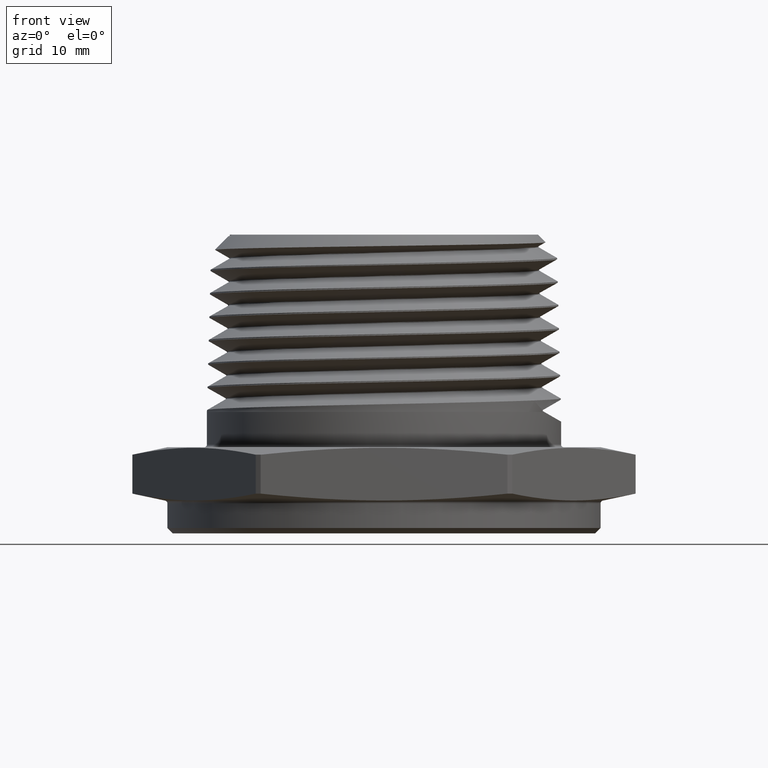
[diagram: clean part render]
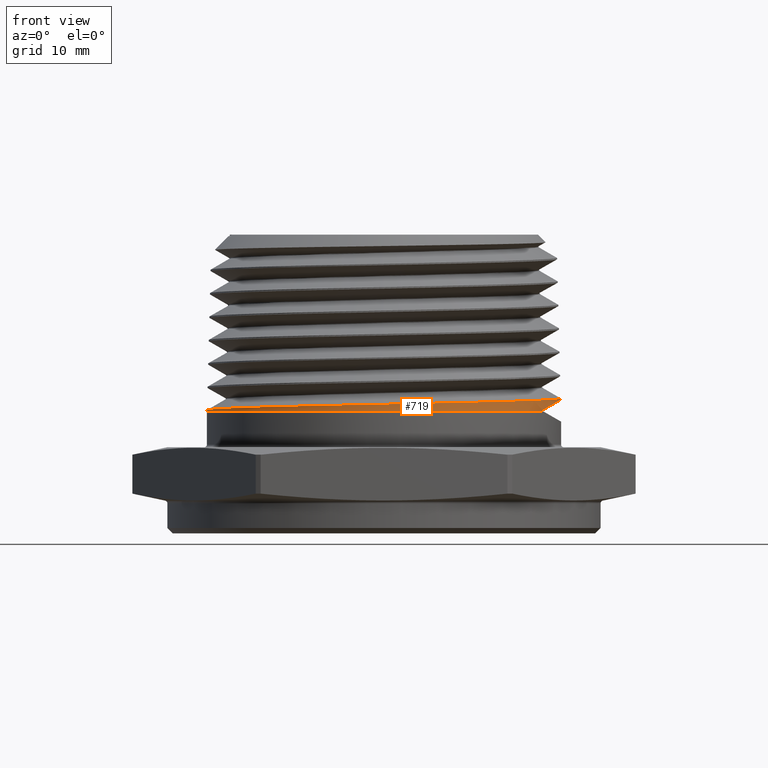
[diagram: same view with one face highlighted and labeled with its STEP entity id]
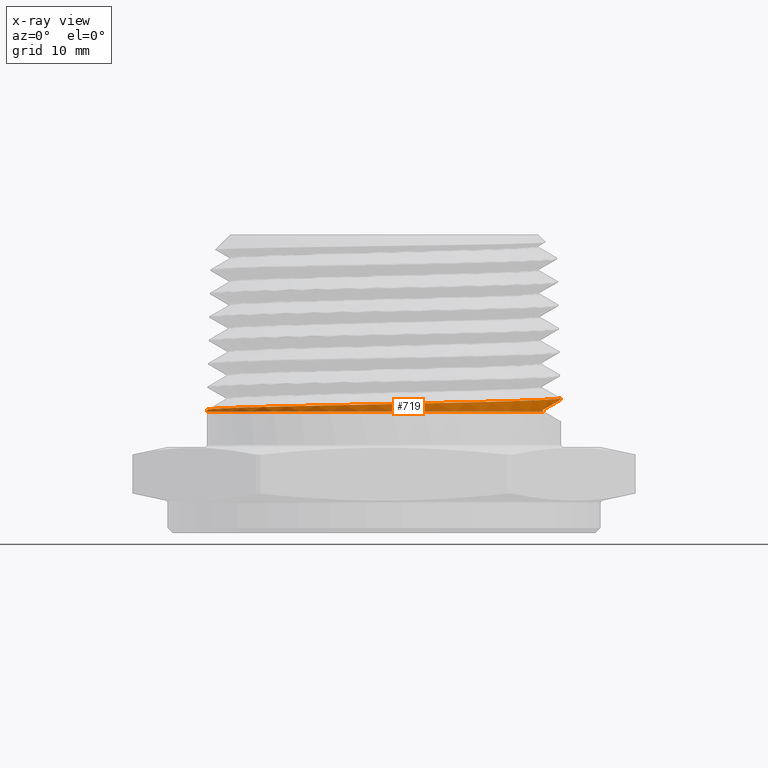
[diagram: x-ray of the same camera — body ghosted, the highlighted face saturated]
A machine part, front view. The second image highlights one B-rep face of the part: STEP entity #719.
The next image is the same camera in x-ray: the body ghosted, the highlighted face saturated — about 0% of this face is hidden behind the body in this view.
In plain terms, the highlighted conical surface has half-angle 1.47 deg.
Its self-contained STEP definition (entity closure, byte-faithful):
#719 = ADVANCED_FACE ( 'NONE', ( #4625 ), #5958, .T. ) ;
#788 = EDGE_CURVE ( 'NONE', #2384, #2395, #6013, .T. ) ;
#848 = EDGE_CURVE ( 'NONE', #2395, #1600, #5907, .T. ) ;
#849 = EDGE_CURVE ( 'NONE', #2384, #2394, #5908, .T. ) ;
#851 = EDGE_CURVE ( 'NONE', #1653, #2398, #6071, .T. ) ;
#852 = EDGE_CURVE ( 'NONE', #2394, #1653, #6077, .T. ) ;
#853 = EDGE_CURVE ( 'NONE', #1599, #2398, #5909, .T. ) ;
#864 = EDGE_CURVE ( 'NONE', #1600, #1599, #5916, .T. ) ;
#957 = AXIS2_PLACEMENT_3D ( 'NONE', #1794, #1790, #1792 ) ;
#1413 = CARTESIAN_POINT ( 'NONE',  ( -0.6580000000000000300, 0.0000000000000000000, 0.3314379562613716800 ) ) ;
#1414 = CARTESIAN_POINT ( 'NONE',  ( 0.5898525199133291000, -0.2914352094944749900, 0.3345035787355981100 ) ) ;
#1415 = CARTESIAN_POINT ( 'NONE',  ( 0.5898525199133287700, -0.2912411631053252700, 0.3378522102968977100 ) ) ;
#1461 = CARTESIAN_POINT ( 'NONE',  ( 0.6567134355445304300, -9.860924235501280200E-015, 0.3815730164504494400 ) ) ;
#1471 = CARTESIAN_POINT ( 'NONE',  ( -0.6578292180391130900, 1.210439517498192600E-016, 0.3380930164504473100 ) ) ;
#1472 = CARTESIAN_POINT ( 'NONE',  ( 0.6568428721711039300, 9.652806251365154000E-016, 0.3765291082060324100 ) ) ;
#1475 = CARTESIAN_POINT ( 'NONE',  ( 0.5951623337955140900, -0.2806168142344235800, 0.3314379562613716800 ) ) ;
#1599 = VERTEX_POINT ( 'NONE', #1414 ) ;
#1600 = VERTEX_POINT ( 'NONE', #1415 ) ;
#1653 = VERTEX_POINT ( 'NONE', #1413 ) ;
#1790 = DIRECTION ( 'NONE',  ( -0.0000000000000000000, -0.0000000000000000000, -1.000000000000000000 ) ) ;
#1792 = DIRECTION ( 'NONE',  ( -1.000000000000000000, 0.0000000000000000000, 0.0000000000000000000 ) ) ;
#1794 = CARTESIAN_POINT ( 'NONE',  ( 0.0000000000000000000, 0.0000000000000000000, 0.2194869294921574800 ) ) ;
#2209 = CARTESIAN_POINT ( 'NONE',  ( 0.6567134355445304300, -9.860924235501280200E-015, 0.3815730164504494400 ) ) ;
#2259 = CARTESIAN_POINT ( 'NONE',  ( 0.6567369056506057200, -0.04339715730641004200, 0.3806584294076113000 ) ) ;
#2303 = AXIS2_PLACEMENT_3D ( 'NONE', #2467, #2468, #2469 ) ;
#2384 = VERTEX_POINT ( 'NONE', #1461 ) ;
#2394 = VERTEX_POINT ( 'NONE', #1471 ) ;
#2395 = VERTEX_POINT ( 'NONE', #1472 ) ;
#2398 = VERTEX_POINT ( 'NONE', #1475 ) ;
#2407 = CARTESIAN_POINT ( 'NONE',  ( 0.6568428721711039300, 9.652806251365154000E-016, 0.3765291082060324100 ) ) ;
#2408 = DIRECTION ( 'NONE',  ( -0.02565352539212765300, 0.0000000000000000000, -0.9996708941621514900 ) ) ;
#2409 = CARTESIAN_POINT ( 'NONE',  ( 0.6568428721711039300, -0.1013337133402427000, 0.3765291082060323000 ) ) ;
#2410 = CARTESIAN_POINT ( 'NONE',  ( 0.6341274557185087000, -0.2000891920787184500, 0.3634143564023718500 ) ) ;
#2411 = CARTESIAN_POINT ( 'NONE',  ( 0.5898525199133287700, -0.2912411631053252700, 0.3378522102968977100 ) ) ;
#2414 = CARTESIAN_POINT ( 'NONE',  ( 0.6524889236752985400, -0.08616527073906904400, 0.3797571019703457900 ) ) ;
#2415 = CARTESIAN_POINT ( 'NONE',  ( 0.6399936896933122700, -0.1491494512881604800, 0.3784039927050985600 ) ) ;
#2416 = CARTESIAN_POINT ( 'NONE',  ( 0.6348004925453525300, -0.1699631981320700000, 0.3779510165498167800 ) ) ;
#2417 = CARTESIAN_POINT ( 'NONE',  ( 0.6223145524833897400, -0.2112211429723215600, 0.3770427112903583800 ) ) ;
#2418 = CARTESIAN_POINT ( 'NONE',  ( 0.6149765384247373200, -0.2317530552344231600, 0.3765853477994813800 ) ) ;
#2419 = CARTESIAN_POINT ( 'NONE',  ( 0.5902232165858837300, -0.2915184465484796400, 0.3752222740235077200 ) ) ;
#2420 = CARTESIAN_POINT ( 'NONE',  ( 0.5700300173382353300, -0.3292808222137241200, 0.3743244407011581700 ) ) ;
#2421 = CARTESIAN_POINT ( 'NONE',  ( 0.5342787168073156500, -0.3828441991189949200, 0.3729676776663980500 ) ) ;
#2422 = CARTESIAN_POINT ( 'NONE',  ( 0.5214235291131775800, -0.4002077240866688300, 0.3725115816458150500 ) ) ;
#2423 = CARTESIAN_POINT ( 'NONE',  ( 0.4939002561554556900, -0.4337534759318648600, 0.3715974677031099200 ) ) ;
#2424 = CARTESIAN_POINT ( 'NONE',  ( 0.4794221395338140700, -0.4497095094615977100, 0.3711456366927846600 ) ) ;
#2425 = CARTESIAN_POINT ( 'NONE',  ( 0.4339106623185426400, -0.4952090304188362400, 0.3697898736688560200 ) ) ;
#2426 = CARTESIAN_POINT ( 'NONE',  ( 0.4008194911163391900, -0.5224061692586617900, 0.3688920263576103100 ) ) ;
#2427 = CARTESIAN_POINT ( 'NONE',  ( 0.3469782497905014000, -0.5584068959754980900, 0.3675277449132204900 ) ) ;
#2428 = CARTESIAN_POINT ( 'NONE',  ( 0.3282867826883585400, -0.5696077229070458700, 0.3670678222739587300 ) ) ;
#2429 = CARTESIAN_POINT ( 'NONE',  ( 0.2903039439713733800, -0.5898977684212540800, 0.3661608526586644900 ) ) ;
#2430 = CARTESIAN_POINT ( 'NONE',  ( 0.2709160397493077200, -0.5990576561335535500, 0.3657112613438754400 ) ) ;
#2431 = CARTESIAN_POINT ( 'NONE',  ( 0.2313612273028892200, -0.6154412821016056500, 0.3648095030311995200 ) ) ;
#2432 = CARTESIAN_POINT ( 'NONE',  ( 0.2111943069555144200, -0.6226649945961269000, 0.3643574130796458100 ) ) ;
#2433 = CARTESIAN_POINT ( 'NONE',  ( 0.1700724664421435500, -0.6351540081190004700, 0.3634523273827072200 ) ) ;
#2434 = CARTESIAN_POINT ( 'NONE',  ( 0.1490235185621674200, -0.6404370882457017800, 0.3629973547731549200 ) ) ;
#2435 = CARTESIAN_POINT ( 'NONE',  ( 0.08531371399994387700, -0.6531016997828210700, 0.3616293484890041300 ) ) ;
#2436 = CARTESIAN_POINT ( 'NONE',  ( 0.04264660908360960000, -0.6572618125474819500, 0.3607310480200133800 ) ) ;
#2437 = CARTESIAN_POINT ( 'NONE',  ( -0.02163535437652272200, -0.6572762031527805700, 0.3593774297637343200 ) ) ;
#2438 = CARTESIAN_POINT ( 'NONE',  ( -0.04310986884310084900, -0.6562358746899826800, 0.3589237856430591000 ) ) ;
#2439 = CARTESIAN_POINT ( 'NONE',  ( -0.08615597954620130000, -0.6520060236286280300, 0.3580130657813560500 ) ) ;
#2440 = CARTESIAN_POINT ( 'NONE',  ( -0.1076658024760894400, -0.6488087995067717300, 0.3575572600591291900 ) ) ;
#2441 = CARTESIAN_POINT ( 'NONE',  ( -0.1709343776152244000, -0.6362069546382610500, 0.3561988977744927100 ) ) ;
#2442 = CARTESIAN_POINT ( 'NONE',  ( -0.2119038269662235600, -0.6237840253982945800, 0.3553019819292923500 ) ) ;
#2443 = CARTESIAN_POINT ( 'NONE',  ( -0.2715408605215756700, -0.5991099112766487000, 0.3539432441507376900 ) ) ;
#2444 = CARTESIAN_POINT ( 'NONE',  ( -0.2912203817869228900, -0.5898114966207692600, 0.3534840875556103400 ) ) ;
#2445 = CARTESIAN_POINT ( 'NONE',  ( -0.3293403276088433000, -0.5694317908669702700, 0.3525741571038261700 ) ) ;
#2446 = CARTESIAN_POINT ( 'NONE',  ( -0.3477683433425797800, -0.5583742734095770200, 0.3521237995484563500 ) ) ;
#2447 = CARTESIAN_POINT ( 'NONE',  ( -0.4012059516163664600, -0.5226671483231339900, 0.3507708446136019700 ) ) ;
#2448 = CARTESIAN_POINT ( 'NONE',  ( -0.4343869534377806100, -0.4955072412352231600, 0.3498726946590404700 ) ) ;
#2449 = CARTESIAN_POINT ( 'NONE',  ( -0.4803658417534303300, -0.4495619410618250100, 0.3485045494422381900 ) ) ;
#2450 = CARTESIAN_POINT ( 'NONE',  ( -0.4949158035042065000, -0.4335008714325980200, 0.3480474723042652500 ) ) ;
#2451 = CARTESIAN_POINT ( 'NONE',  ( -0.5221698170766883000, -0.4002922125414267700, 0.3471433149456530400 ) ) ;
#2452 = CARTESIAN_POINT ( 'NONE',  ( -0.5349295289339136600, -0.3830895612388930400, 0.3466945616674314000 ) ) ;
#2453 = CARTESIAN_POINT ( 'NONE',  ( -0.5587319362063166700, -0.3474999996340124000, 0.3457934672291278500 ) ) ;
#2454 = CARTESIAN_POINT ( 'NONE',  ( -0.5697746696004908400, -0.3291131150220538700, 0.3453411457831130300 ) ) ;
#2455 = CARTESIAN_POINT ( 'NONE',  ( -0.5901109157934001400, -0.2911328326708829700, 0.3444344944812531800 ) ) ;
#2456 = CARTESIAN_POINT ( 'NONE',  ( -0.5994417803709810600, -0.2714328136310304500, 0.3439778296193996600 ) ) ;
#2457 = CARTESIAN_POINT ( 'NONE',  ( -0.6242280521242373800, -0.2116325860836239800, 0.3426155712094244900 ) ) ;
#2458 = CARTESIAN_POINT ( 'NONE',  ( -0.6366611459256239500, -0.1706489007381289900, 0.3417187026457771400 ) ) ;
#2459 = CARTESIAN_POINT ( 'NONE',  ( -0.6492772790273274600, -0.1075267896514644900, 0.3403643080298636700 ) ) ;
#2460 = CARTESIAN_POINT ( 'NONE',  ( -0.6524700115833591600, -0.08620976128457993900, 0.3399098250256018000 ) ) ;
#2461 = CARTESIAN_POINT ( 'NONE',  ( -0.6567577939900390800, -0.04300326447995933600, 0.3389962817593364400 ) ) ;
#2462 = CARTESIAN_POINT ( 'NONE',  ( -0.6578176315564523400, -0.02146026615534248400, 0.3385445204564254700 ) ) ;
#2463 = CARTESIAN_POINT ( 'NONE',  ( -0.6578292180391130900, 1.210439517498192600E-016, 0.3380930164504473100 ) ) ;
#2464 = CARTESIAN_POINT ( 'NONE',  ( -0.6608728839907916900, 0.0000000000000000000, 0.2194869294921574800 ) ) ;
#2465 = CARTESIAN_POINT ( 'NONE',  ( 0.5898525199133291000, -0.2914352094944749900, 0.3345035787355981100 ) ) ;
#2466 = CARTESIAN_POINT ( 'NONE',  ( 0.5916559042699075500, -0.2878455543153887700, 0.3334623942918751900 ) ) ;
#2467 = CARTESIAN_POINT ( 'NONE',  ( 0.0000000000000000000, 0.0000000000000000000, 0.3314379562613716800 ) ) ;
#2468 = DIRECTION ( 'NONE',  ( 0.0000000000000000000, 0.0000000000000000000, 1.000000000000000000 ) ) ;
#2469 = DIRECTION ( 'NONE',  ( -1.000000000000000000, 0.0000000000000000000, 0.0000000000000000000 ) ) ;
#2473 = CARTESIAN_POINT ( 'NONE',  ( 0.5934258930481486300, -0.2842393190247110000, 0.3324404907942950500 ) ) ;
#2474 = CARTESIAN_POINT ( 'NONE',  ( 0.5951623337955140900, -0.2806168142344235800, 0.3314379562613716800 ) ) ;
#2655 = CARTESIAN_POINT ( 'NONE',  ( 0.5898525199133288800, -0.2913058625036815700, 0.3367360007003286600 ) ) ;
#2656 = CARTESIAN_POINT ( 'NONE',  ( 0.5898525199133287700, -0.2912411631053252700, 0.3378522102968977100 ) ) ;
#2705 = CARTESIAN_POINT ( 'NONE',  ( 0.5898525199133289900, -0.2913705446219407300, 0.3356197901792824000 ) ) ;
#2706 = CARTESIAN_POINT ( 'NONE',  ( 0.5898525199133291000, -0.2914352094944749900, 0.3345035787355981100 ) ) ;
#4357 = EDGE_LOOP ( 'NONE', ( #4436, #4439, #4438, #4441, #4440, #4443, #4442 ) ) ;
#4436 = ORIENTED_EDGE ( 'NONE', *, *, #788, .F. ) ;
#4438 = ORIENTED_EDGE ( 'NONE', *, *, #852, .T. ) ;
#4439 = ORIENTED_EDGE ( 'NONE', *, *, #849, .T. ) ;
#4440 = ORIENTED_EDGE ( 'NONE', *, *, #853, .F. ) ;
#4441 = ORIENTED_EDGE ( 'NONE', *, *, #851, .T. ) ;
#4442 = ORIENTED_EDGE ( 'NONE', *, *, #848, .F. ) ;
#4443 = ORIENTED_EDGE ( 'NONE', *, *, #864, .F. ) ;
#4625 = FACE_OUTER_BOUND ( 'NONE', #4357, .T. ) ;
#5691 = DIRECTION ( 'NONE',  ( 0.02565352539212765300, 3.141650775831448500E-018, -0.9996708941621514900 ) ) ;
#5694 = CARTESIAN_POINT ( 'NONE',  ( 0.6608728839907916900, 8.093358620226030600E-017, 0.2194869294921574800 ) ) ;
#5907 =( BOUNDED_CURVE ( )  B_SPLINE_CURVE ( 3, ( #2407, #2409, #2410, #2411 ),
 .UNSPECIFIED., .F., .T. ) 
 B_SPLINE_CURVE_WITH_KNOTS ( ( 4, 4 ),
 ( 3.141592653589793100, 3.593713331201031200 ),
 .UNSPECIFIED. ) 
 CURVE ( )  GEOMETRIC_REPRESENTATION_ITEM ( )  RATIONAL_B_SPLINE_CURVE ( ( 1.000000000000000000, 0.9830379938602057400, 0.9830379938602057400, 1.000000000000000000 ) ) 
 REPRESENTATION_ITEM ( '' )  );
#5908 = B_SPLINE_CURVE_WITH_KNOTS ( 'NONE', 3,
 ( #2209, #2259, #2414, #2415, #2416, #2417, #2418, #2419, #2420, #2421, #2422, #2423, #2424, #2425, #2426, #2427, #2428, #2429, #2430, #2431, #2432, #2433, #2434, #2435, #2436, #2437, #2438, #2439, #2440, #2441, #2442, #2443, #2444, #2445, #2446, #2447, #2448, #2449, #2450, #2451, #2452, #2453, #2454, #2455, #2456, #2457, #2458, #2459, #2460, #2461, #2462, #2463 ),
 .UNSPECIFIED., .F., .F.,
 ( 4, 2, 2, 2, 2, 2, 2, 2, 2, 2, 2, 2, 2, 2, 2, 2, 2, 2, 2, 2, 2, 2, 2, 2, 2, 4 ),
 ( 0.6420972042556091200, 0.6453811021577780000, 0.6470230511088623800, 0.6486650000599467600, 0.6519488979621156400, 0.6535908469132000200, 0.6552327958642845100, 0.6585166937664532800, 0.6601586427175376600, 0.6618005916686221500, 0.6634425406197065300, 0.6650844895707909200, 0.6683683874729597900, 0.6700103364240441700, 0.6716522853751286700, 0.6749361832772974300, 0.6765781322283818100, 0.6782200811794663100, 0.6815039790816350700, 0.6831459280327194500, 0.6847878769838039400, 0.6864298259348883300, 0.6880717748859727100, 0.6913556727881415800, 0.6929976217392259700, 0.6946395706903103500 ),
 .UNSPECIFIED. ) ;
#5909 =( BOUNDED_CURVE ( )  B_SPLINE_CURVE ( 3, ( #2465, #2466, #2473, #2474 ),
 .UNSPECIFIED., .F., .T. ) 
 B_SPLINE_CURVE_WITH_KNOTS ( ( 4, 4 ),
 ( 5.817676564408364100, 5.836238088227820400 ),
 .UNSPECIFIED. ) 
 CURVE ( )  GEOMETRIC_REPRESENTATION_ITEM ( )  RATIONAL_B_SPLINE_CURVE ( ( 1.000000000000000000, 0.9999712893588692500, 0.9999712893588692500, 1.000000000000000000 ) ) 
 REPRESENTATION_ITEM ( '' )  );
#5916 = B_SPLINE_CURVE_WITH_KNOTS ( 'NONE', 3,
 ( #2656, #2655, #2705, #2706 ),
 .UNSPECIFIED., .F., .F.,
 ( 4, 4 ),
 ( 0.03011813661738806400, 0.03020333229334863300 ),
 .UNSPECIFIED. ) ;
#5958 = CONICAL_SURFACE ( 'NONE', #957, 0.6608728839907916900, 0.02565634000430924400 ) ;
#6013 = LINE ( 'NONE', #5694, #6017 ) ;
#6017 = VECTOR ( 'NONE', #5691, 39.37007874015748100 ) ;
#6071 = CIRCLE ( 'NONE', #2303, 0.6580000000000000300 ) ;
#6077 = LINE ( 'NONE', #2464, #6079 ) ;
#6079 = VECTOR ( 'NONE', #2408, 39.37007874015748100 ) ;